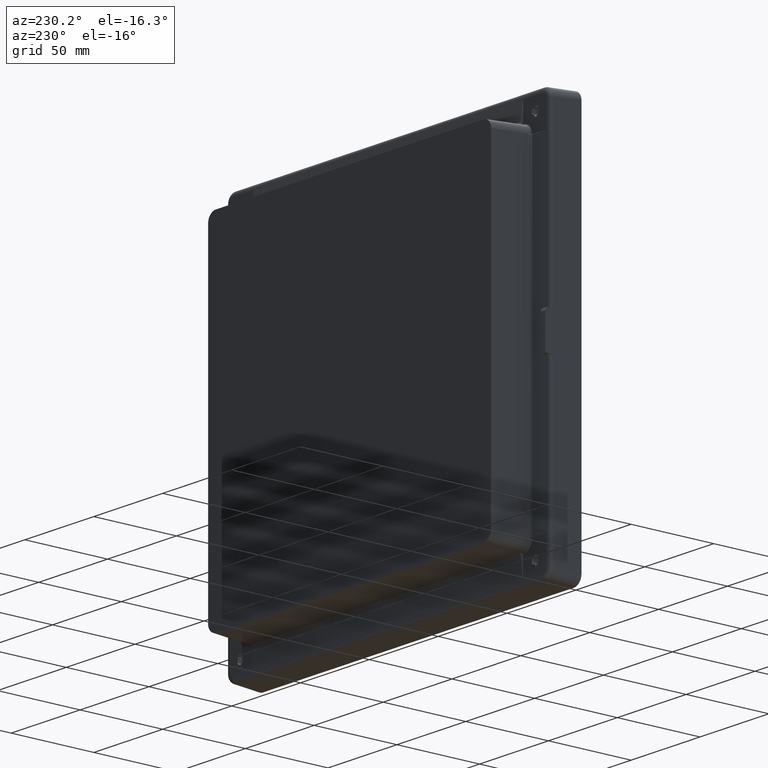
[diagram: clean part render]
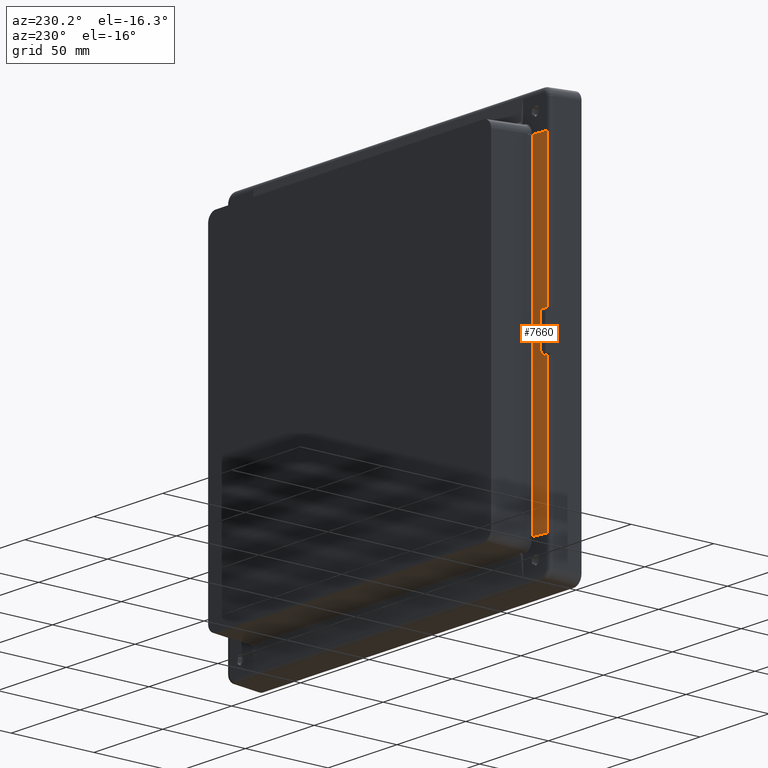
[diagram: same view with one face highlighted and labeled with its STEP entity id]
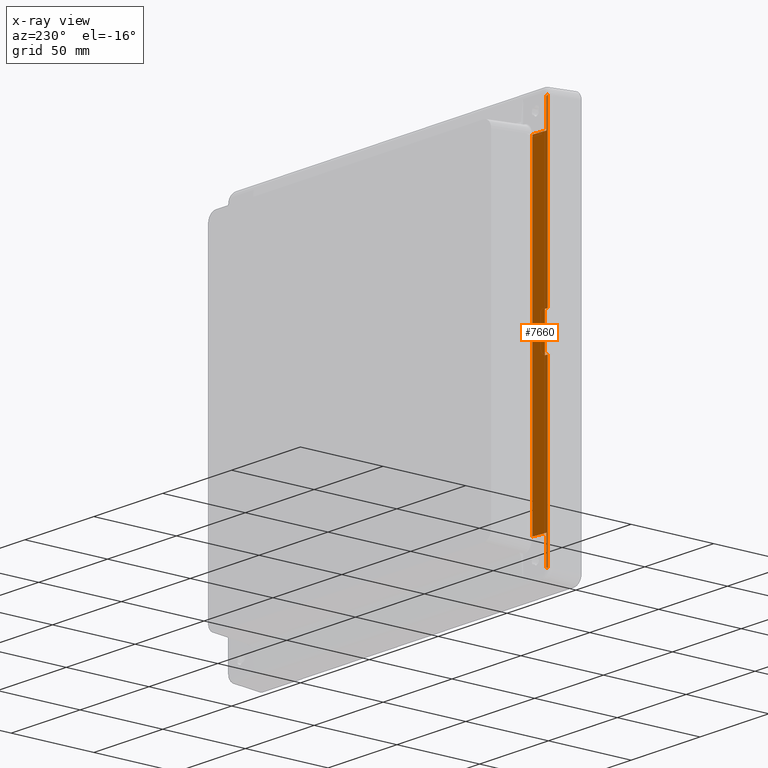
[diagram: x-ray of the same camera — body ghosted, the highlighted face saturated]
A machine part, auxiliary view. The second image highlights one B-rep face of the part: STEP entity #7660.
The next image is the same camera in x-ray: the body ghosted, the highlighted face saturated — about 0% of this face is hidden behind the body in this view.
In plain terms, the highlighted planar face has unit normal (-0.0958, 0.9954, 0).
Its self-contained STEP definition (entity closure, byte-faithful):
#410 = EDGE_CURVE ( 'NONE', #411, #412, #3924, .T. ) ;
#411 = VERTEX_POINT ( 'NONE', #3923 ) ;
#412 = VERTEX_POINT ( 'NONE', #3925 ) ;
#421 = VERTEX_POINT ( 'NONE', #3946 ) ;
#425 = EDGE_CURVE ( 'NONE', #412, #421, #3981, .T. ) ;
#466 = EDGE_CURVE ( 'NONE', #3912, #3835, #4062, .T. ) ;
#3825 = EDGE_CURVE ( 'NONE', #3826, #3912, #5678, .T. ) ;
#3826 = VERTEX_POINT ( 'NONE', #5674 ) ;
#3834 = EDGE_CURVE ( 'NONE', #3889, #3835, #5718, .T. ) ;
#3835 = VERTEX_POINT ( 'NONE', #5714 ) ;
#3889 = VERTEX_POINT ( 'NONE', #5885 ) ;
#3912 = VERTEX_POINT ( 'NONE', #5890 ) ;
#3917 = CARTESIAN_POINT ( 'NONE',  ( -91.61372593939907500, 10.17930910618066600, -114.7738134976126800 ) ) ;
#3918 = CARTESIAN_POINT ( 'NONE',  ( -91.64620911101715700, 10.17618133250312500, -114.6655336269809700 ) ) ;
#3919 = CARTESIAN_POINT ( 'NONE',  ( -91.70039976566766900, 10.17096336594562400, -114.4470483946373600 ) ) ;
#3920 = CARTESIAN_POINT ( 'NONE',  ( -91.74963620703428500, 10.16622243586979700, -114.1116409665654300 ) ) ;
#3921 = CARTESIAN_POINT ( 'NONE',  ( -91.76053263203205300, 10.16517322947800900, -113.8867413932733700 ) ) ;
#3922 = CARTESIAN_POINT ( 'NONE',  ( -91.76054573269699700, 10.16517196802744900, -113.7736508560150000 ) ) ;
#3923 = CARTESIAN_POINT ( 'NONE',  ( -91.76054573269699700, 10.16517196802744900, -113.7736508560150000 ) ) ;
#3924 = B_SPLINE_CURVE_WITH_KNOTS ( 'NONE', 3,
 ( #3922, #3921, #3920, #3919, #3918, #3917 ),
 .UNSPECIFIED., .F., .F.,
 ( 4, 1, 1, 4 ),
 ( 0.0000000000000000000, 0.0003380648899104829900, 0.0006761391703267769600, 0.001014204060236781800 ),
 .UNSPECIFIED. ) ;
#3925 = CARTESIAN_POINT ( 'NONE',  ( -91.61372593939907500, 10.17930910618066600, -114.7738134976126800 ) ) ;
#3946 = CARTESIAN_POINT ( 'NONE',  ( -90.74401088133556900, 10.26305314132459600, -113.9040984395494300 ) ) ;
#3972 = DIRECTION ( 'NONE',  ( 0.7054734583899195900, 0.06792936783698895500, 0.7054734583899195900 ) ) ;
#3973 = VECTOR ( 'NONE', #3972, 1000.000000000000100 ) ;
#3980 = CARTESIAN_POINT ( 'NONE',  ( -91.17886841036754200, 10.22118112375264700, -114.3389559685811200 ) ) ;
#3981 = LINE ( 'NONE', #3980, #3973 ) ;
#4059 = DIRECTION ( 'NONE',  ( 0.0000000000000000000, 0.0000000000000000000, 1.000000000000000000 ) ) ;
#4060 = VECTOR ( 'NONE', #4059, 1000.000000000000000 ) ;
#4061 = CARTESIAN_POINT ( 'NONE',  ( -89.88694522352274400, 10.34557917775825500, 0.0000000000000000000 ) ) ;
#4062 = LINE ( 'NONE', #4061, #4060 ) ;
#5674 = CARTESIAN_POINT ( 'NONE',  ( -91.76054573269672700, 10.16517196802745500, -11.20722333784912500 ) ) ;
#5675 = DIRECTION ( 'NONE',  ( 0.9953961983671790700, 0.09584575252022088700, 0.0000000000000000000 ) ) ;
#5676 = VECTOR ( 'NONE', #5675, 1000.000000000000100 ) ;
#5677 = CARTESIAN_POINT ( 'NONE',  ( -90.82374547810987100, 10.25537557289285200, -11.20722333784911500 ) ) ;
#5678 = LINE ( 'NONE', #5677, #5676 ) ;
#5714 = CARTESIAN_POINT ( 'NONE',  ( -89.88694522352274400, 10.34557917775825500, 11.20722333784911500 ) ) ;
#5715 = DIRECTION ( 'NONE',  ( 0.9953961983671790700, 0.09584575252022088700, 0.0000000000000000000 ) ) ;
#5716 = VECTOR ( 'NONE', #5715, 1000.000000000000100 ) ;
#5717 = CARTESIAN_POINT ( 'NONE',  ( -90.82374547810987100, 10.25537557289285200, 11.20722333784911500 ) ) ;
#5718 = LINE ( 'NONE', #5717, #5716 ) ;
#5885 = CARTESIAN_POINT ( 'NONE',  ( -91.76054573269672700, 10.16517196802745500, 11.20722333784912500 ) ) ;
#5890 = CARTESIAN_POINT ( 'NONE',  ( -89.88694522352274400, 10.34557917775825500, -11.20722333784911500 ) ) ;
#6858 = VERTEX_POINT ( 'NONE', #10592 ) ;
#6873 = EDGE_CURVE ( 'NONE', #6874, #6858, #10620, .T. ) ;
#6874 = VERTEX_POINT ( 'NONE', #10616 ) ;
#6888 = VERTEX_POINT ( 'NONE', #10638 ) ;
#6892 = EDGE_CURVE ( 'NONE', #6858, #6888, #10632, .T. ) ;
#7049 = VERTEX_POINT ( 'NONE', #11418 ) ;
#7056 = EDGE_CURVE ( 'NONE', #7222, #6874, #11406, .T. ) ;
#7097 = VERTEX_POINT ( 'NONE', #11639 ) ;
#7148 = VERTEX_POINT ( 'NONE', #11715 ) ;
#7181 = EDGE_CURVE ( 'NONE', #7097, #7148, #11897, .T. ) ;
#7222 = VERTEX_POINT ( 'NONE', #12041 ) ;
#7223 = EDGE_CURVE ( 'NONE', #7222, #7049, #12040, .T. ) ;
#7456 = EDGE_CURVE ( 'NONE', #7049, #7097, #12529, .T. ) ;
#7613 = EDGE_CURVE ( 'NONE', #3889, #6888, #13516, .T. ) ;
#7647 = EDGE_CURVE ( 'NONE', #421, #7148, #13634, .T. ) ;
#7651 = EDGE_CURVE ( 'NONE', #411, #3826, #13269, .T. ) ;
#7660 = ADVANCED_FACE ( 'NONE', ( #13688 ), #13687, .T. ) ;
#7678 = EDGE_LOOP ( 'NONE', ( #7777, #7741, #7724, #7733, #7757, #7766, #7722, #7709, #7716, #7714, #7732, #7720, #7744, #7756 ) ) ;
#7709 = ORIENTED_EDGE ( 'NONE', *, *, #6873, .F. ) ;
#7714 = ORIENTED_EDGE ( 'NONE', *, *, #7223, .T. ) ;
#7716 = ORIENTED_EDGE ( 'NONE', *, *, #7056, .F. ) ;
#7720 = ORIENTED_EDGE ( 'NONE', *, *, #7181, .T. ) ;
#7722 = ORIENTED_EDGE ( 'NONE', *, *, #6892, .F. ) ;
#7724 = ORIENTED_EDGE ( 'NONE', *, *, #3825, .T. ) ;
#7732 = ORIENTED_EDGE ( 'NONE', *, *, #7456, .T. ) ;
#7733 = ORIENTED_EDGE ( 'NONE', *, *, #466, .T. ) ;
#7741 = ORIENTED_EDGE ( 'NONE', *, *, #7651, .T. ) ;
#7744 = ORIENTED_EDGE ( 'NONE', *, *, #7647, .F. ) ;
#7756 = ORIENTED_EDGE ( 'NONE', *, *, #425, .F. ) ;
#7757 = ORIENTED_EDGE ( 'NONE', *, *, #3834, .F. ) ;
#7766 = ORIENTED_EDGE ( 'NONE', *, *, #7613, .T. ) ;
#7777 = ORIENTED_EDGE ( 'NONE', *, *, #410, .F. ) ;
#10592 = CARTESIAN_POINT ( 'NONE',  ( -91.61372593939897500, 10.17930910618067300, 114.7738134976130100 ) ) ;
#10616 = CARTESIAN_POINT ( 'NONE',  ( -90.74401088133554100, 10.26305314132459900, 113.9040984395496300 ) ) ;
#10617 = DIRECTION ( 'NONE',  ( -0.7054734583899140400, -0.06792936783698726200, 0.7054734583899252600 ) ) ;
#10618 = VECTOR ( 'NONE', #10617, 1000.000000000000000 ) ;
#10619 = CARTESIAN_POINT ( 'NONE',  ( -91.17886841036748500, 10.22118112375264700, 114.3389559685815200 ) ) ;
#10620 = LINE ( 'NONE', #10619, #10618 ) ;
#10623 = CARTESIAN_POINT ( 'NONE',  ( -91.76054573269681200, 10.16517196802747200, 113.7736508560149700 ) ) ;
#10624 = CARTESIAN_POINT ( 'NONE',  ( -91.76053264399513400, 10.16517322832609200, 113.8867413943832100 ) ) ;
#10625 = CARTESIAN_POINT ( 'NONE',  ( -91.74963623494346600, 10.16622243318244400, 114.1116409691931600 ) ) ;
#10626 = CARTESIAN_POINT ( 'NONE',  ( -91.70039979314363200, 10.17096336329999000, 114.4470484002160000 ) ) ;
#10627 = CARTESIAN_POINT ( 'NONE',  ( -91.64620912278972800, 10.17618133136955000, 114.6655336293882400 ) ) ;
#10628 = CARTESIAN_POINT ( 'NONE',  ( -91.61372593939897500, 10.17930910618067300, 114.7738134976130100 ) ) ;
#10632 = B_SPLINE_CURVE_WITH_KNOTS ( 'NONE', 3,
 ( #10628, #10627, #10626, #10625, #10624, #10623 ),
 .UNSPECIFIED., .F., .F.,
 ( 4, 1, 1, 4 ),
 ( 0.0000000000000000000, 0.0003380648914751440900, 0.0006761391734705049700, 0.001014204064946598800 ),
 .UNSPECIFIED. ) ;
#10638 = CARTESIAN_POINT ( 'NONE',  ( -91.76054573269681200, 10.16517196802747200, 113.7736508560149700 ) ) ;
#11406 = LINE ( 'NONE', #11412, #11411 ) ;
#11410 = DIRECTION ( 'NONE',  ( 0.0000000000000000000, -2.100252915590145300E-016, 1.000000000000000000 ) ) ;
#11411 = VECTOR ( 'NONE', #11410, 1000.000000000000000 ) ;
#11412 = CARTESIAN_POINT ( 'NONE',  ( -90.74401088133599600, 10.26305314132462200, 105.6445052110393700 ) ) ;
#11418 = CARTESIAN_POINT ( 'NONE',  ( -81.62282817424899400, 11.14132314262585100, 97.33888380214969500 ) ) ;
#11639 = CARTESIAN_POINT ( 'NONE',  ( -81.62282817424899400, 11.14132314262585200, -97.33888380214975200 ) ) ;
#11715 = CARTESIAN_POINT ( 'NONE',  ( -90.74401088133612300, 10.26305314132461400, -97.38491198252877700 ) ) ;
#11894 = DIRECTION ( 'NONE',  ( -0.9953836411032691600, -0.09584454339323109100, -0.005022999675627987800 ) ) ;
#11895 = VECTOR ( 'NONE', #11894, 1000.000000000000100 ) ;
#11896 = CARTESIAN_POINT ( 'NONE',  ( -86.18341952779248100, 10.70218814197523800, -97.36189789233925800 ) ) ;
#11897 = LINE ( 'NONE', #11896, #11895 ) ;
#12039 = CARTESIAN_POINT ( 'NONE',  ( -86.18341952779248100, 10.70218814197523600, 97.36189789233922900 ) ) ;
#12040 = LINE ( 'NONE', #12039, #12080 ) ;
#12041 = CARTESIAN_POINT ( 'NONE',  ( -90.74401088133609500, 10.26305314132459900, 97.38491198252876300 ) ) ;
#12079 = DIRECTION ( 'NONE',  ( 0.9953836411032691600, 0.09584454339323109100, -0.005022999675631017500 ) ) ;
#12080 = VECTOR ( 'NONE', #12079, 1000.000000000000100 ) ;
#12526 = DIRECTION ( 'NONE',  ( 0.0000000000000000000, 8.910742594412695800E-018, -1.000000000000000000 ) ) ;
#12527 = VECTOR ( 'NONE', #12526, 1000.000000000000000 ) ;
#12528 = CARTESIAN_POINT ( 'NONE',  ( -81.62282817424899400, 11.14132314262585100, -2.775557561562891400E-014 ) ) ;
#12529 = LINE ( 'NONE', #12528, #12527 ) ;
#13266 = DIRECTION ( 'NONE',  ( -7.266747898036871100E-015, -7.171132794115333600E-016, 1.000000000000000000 ) ) ;
#13267 = VECTOR ( 'NONE', #13266, 1000.000000000000000 ) ;
#13268 = CARTESIAN_POINT ( 'NONE',  ( -91.76054573269684100, 10.16517196802746200, -29.34999999999999400 ) ) ;
#13269 = LINE ( 'NONE', #13268, #13267 ) ;
#13498 = DIRECTION ( 'NONE',  ( 8.031668729409170800E-015, 7.649208313723020000E-016, 1.000000000000000000 ) ) ;
#13499 = VECTOR ( 'NONE', #13498, 1000.000000000000000 ) ;
#13500 = CARTESIAN_POINT ( 'NONE',  ( -91.76054573269684100, 10.16517196802746300, 29.35000000000000100 ) ) ;
#13516 = LINE ( 'NONE', #13500, #13499 ) ;
#13631 = DIRECTION ( 'NONE',  ( 0.0000000000000000000, 0.0000000000000000000, 1.000000000000000000 ) ) ;
#13632 = VECTOR ( 'NONE', #13631, 1000.000000000000000 ) ;
#13633 = CARTESIAN_POINT ( 'NONE',  ( -90.74401088133599600, 10.26305314132462400, -105.6445052110391900 ) ) ;
#13634 = LINE ( 'NONE', #13633, #13632 ) ;
#13676 = DIRECTION ( 'NONE',  ( -0.9953961983671790700, -0.09584575252022101100, 0.0000000000000000000 ) ) ;
#13677 = DIRECTION ( 'NONE',  ( -0.09584575252022101100, 0.9953961983671790700, 9.206565325456830900E-018 ) ) ;
#13678 = CARTESIAN_POINT ( 'NONE',  ( -93.47592220716997200, 10.00000000000000000, 169.7759222071700000 ) ) ;
#13680 = AXIS2_PLACEMENT_3D ( 'NONE', #13678, #13677, #13676 ) ;
#13687 = PLANE ( 'NONE',  #13680 ) ;
#13688 = FACE_OUTER_BOUND ( 'NONE', #7678, .T. ) ;